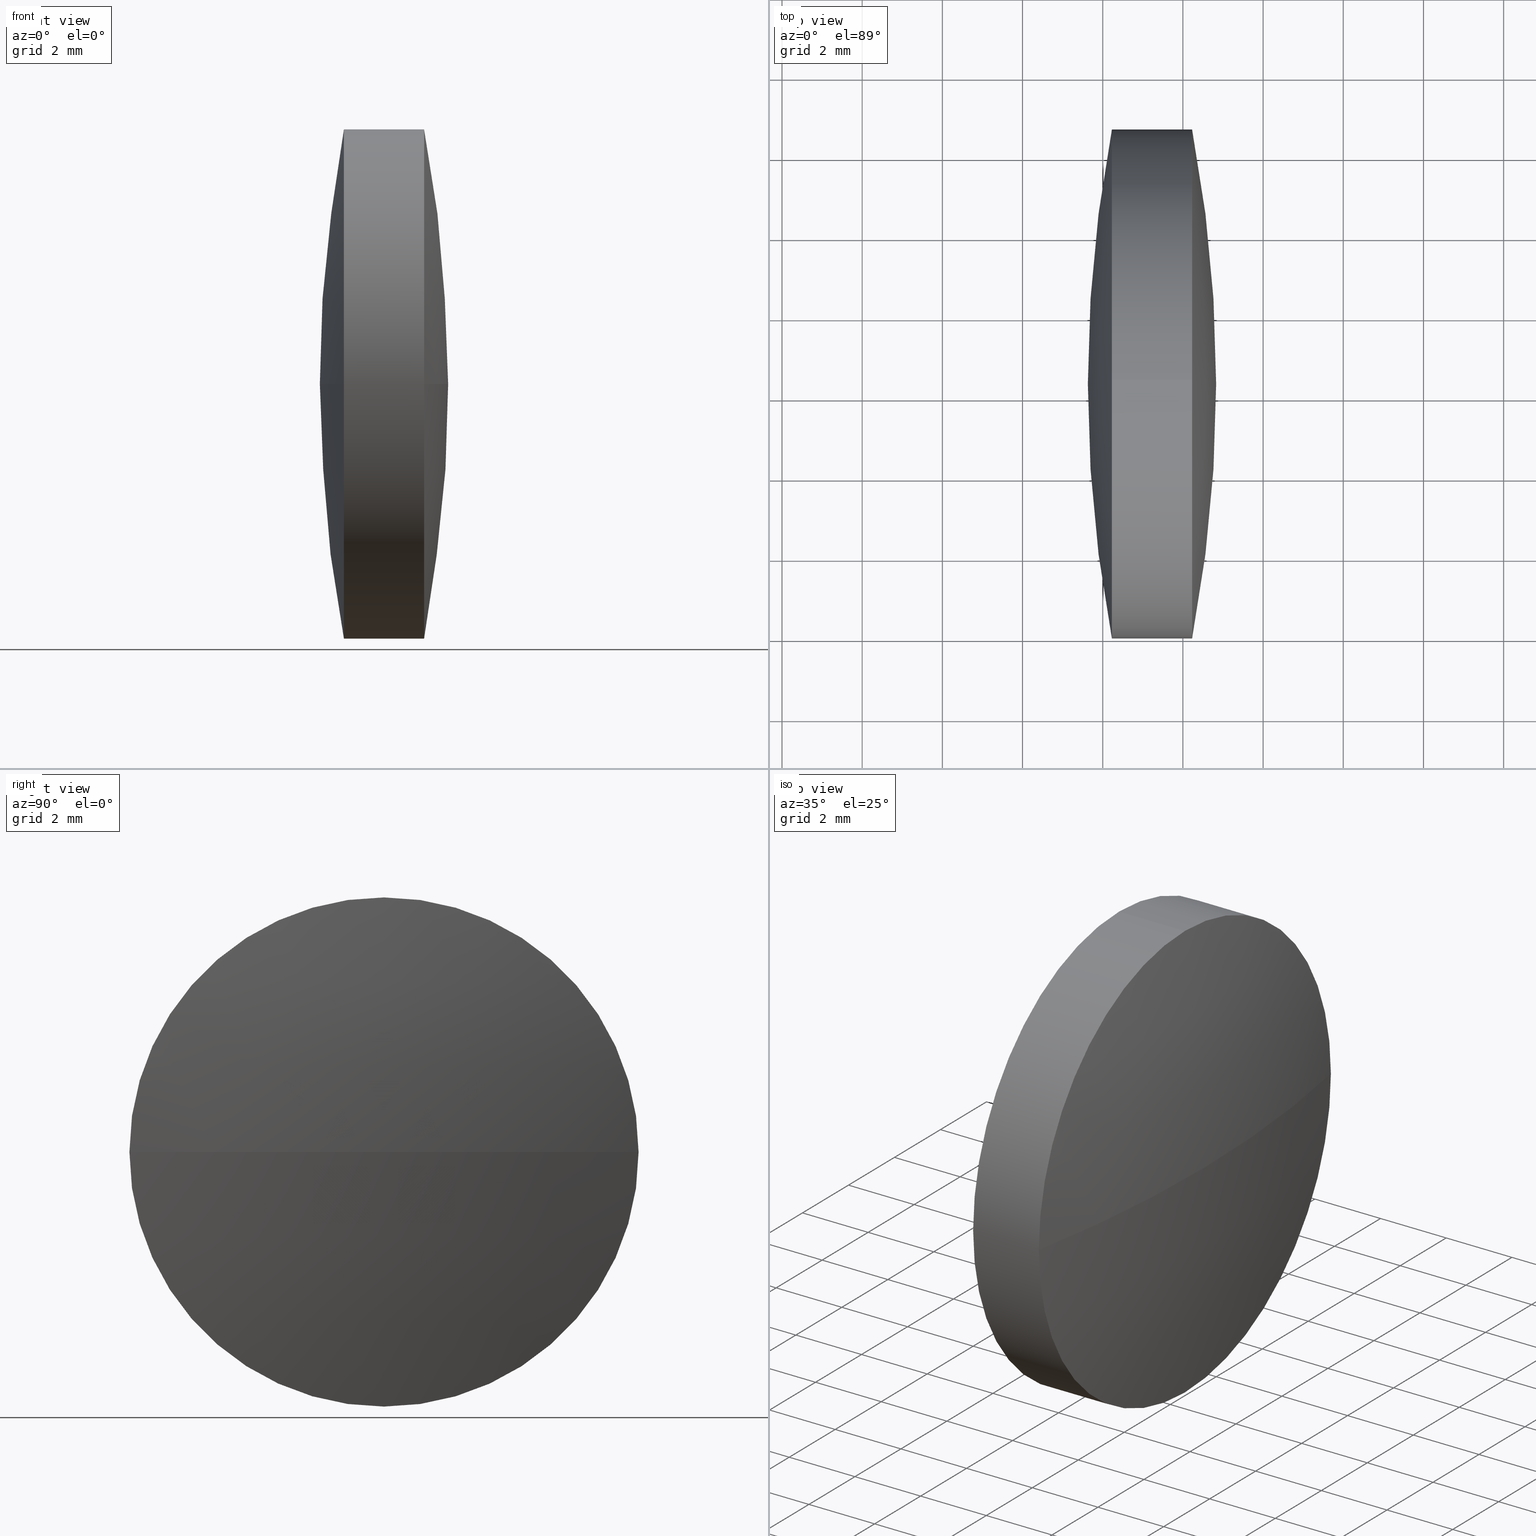
[diagram: canonical four-view strip — front | top / right | iso, engineering-drawing reading convention]
A machine part, canonical four-view strip (front | top / right | iso — engineering-drawing reading convention). The complete STEP part file that produces these views, byte-faithful:
ISO-10303-21;
HEADER;
FILE_DESCRIPTION (( 'STEP AP203' ),
    '1' );
FILE_NAME ('110138.STEP',
    '2019-07-08T08:51:16',
    ( '' ),
    ( '' ),
    'SwSTEP 2.0',
    'SolidWorks 2016',
    '' );
FILE_SCHEMA (( 'CONFIG_CONTROL_DESIGN' ));
ENDSEC;

DATA;
#1 = AXIS2_PLACEMENT_3D ( 'NONE', #329, #265, #82 ) ;
#2 = DIRECTION ( 'NONE',  ( -1.000000000000000000, -0.0000000000000000000, -0.0000000000000000000 ) ) ;
#3 = CARTESIAN_POINT ( 'NONE',  ( 75.53408436791684700, 24.30805651159236500, 0.0000000000000000000 ) ) ;
#4 = CARTESIAN_POINT ( 'NONE',  ( 42.22906260161698100, 24.30805651159239000, -6.349999999999997900 ) ) ;
#5 = EDGE_CURVE ( 'NONE', #108, #230, #272, .T. ) ;
#6 = LOCAL_TIME ( 16, 51, 16.00000000000000000, #186 ) ;
#7 = DIRECTION ( 'NONE',  ( -1.000000000000000000, -0.0000000000000000000, -0.0000000000000000000 ) ) ;
#8 = CARTESIAN_POINT ( 'NONE',  ( 42.22906260161698100, 24.30805651159239000, 6.349999999999997900 ) ) ;
#9 = ORIENTED_EDGE ( 'NONE', *, *, #289, .F. ) ;
#10 = FACE_OUTER_BOUND ( 'NONE', #42, .T. ) ;
#11 = DIRECTION ( 'NONE',  ( -1.000000000000000000, -0.0000000000000000000, -0.0000000000000000000 ) ) ;
#12 = PERSON_AND_ORGANIZATION ( #333, #29 ) ;
#13 = CALENDAR_DATE ( 2019, 8, 7 ) ;
#14 = PERSON_AND_ORGANIZATION_ROLE ( 'creator' ) ;
#15 = EDGE_CURVE ( 'NONE', #182, #170, #63, .T. ) ;
#16 = PERSON_AND_ORGANIZATION_ROLE ( 'design_supplier' ) ;
#17 = CIRCLE ( 'NONE', #52, 33.90496976629939500 ) ;
#18 = APPROVAL_DATE_TIME ( #87, #332 ) ;
#19 = CC_DESIGN_PERSON_AND_ORGANIZATION_ASSIGNMENT ( #235, #122, ( #67 ) ) ;
#20 = ORIENTED_EDGE ( 'NONE', *, *, #343, .T. ) ;
#21 = CC_DESIGN_PERSON_AND_ORGANIZATION_ASSIGNMENT ( #23, #14, ( #95 ) ) ;
#22 = CIRCLE ( 'NONE', #119, 6.349999999999997900 ) ;
#23 = PERSON_AND_ORGANIZATION ( #333, #29 ) ;
#24 = ORIENTED_EDGE ( 'NONE', *, *, #311, .T. ) ;
#25 = CIRCLE ( 'NONE', #260, 6.349999999999997900 ) ;
#26 = DATE_AND_TIME ( #154, #315 ) ;
#27 = VERTEX_POINT ( 'NONE', #113 ) ;
#28 = DIRECTION ( 'NONE',  ( 0.0000000000000000000, 1.000000000000000000, 1.224646799147353000E-016 ) ) ;
#29 = ORGANIZATION ( 'δָ��', 'δָ��', '' ) ;
#30 = ORIENTED_EDGE ( 'NONE', *, *, #289, .T. ) ;
#31 = EDGE_CURVE ( 'NONE', #219, #241, #183, .T. ) ;
#32 = DIRECTION ( 'NONE',  ( 1.000000000000000000, 0.0000000000000000000, 0.0000000000000000000 ) ) ;
#33 = LOCAL_TIME ( 16, 51, 16.00000000000000000, #165 ) ;
#34 = CARTESIAN_POINT ( 'NONE',  ( 75.53408436791684700, 24.30805651159236500, 0.0000000000000000000 ) ) ;
#35 = COORDINATED_UNIVERSAL_TIME_OFFSET ( 8, 0, .AHEAD. ) ;
#36 = CARTESIAN_POINT ( 'NONE',  ( 42.22906260161698100, 24.30805651159239000, 0.0000000000000000000 ) ) ;
#37 = DIRECTION ( 'NONE',  ( 1.000000000000000000, 0.0000000000000000000, 0.0000000000000000000 ) ) ;
#38 = APPLICATION_CONTEXT ( 'configuration controlled 3d designs of mechanical parts and assemblies' ) ;
#39 = APPROVAL_PERSON_ORGANIZATION ( #12, #44, #313 ) ;
#40 = APPROVAL_STATUS ( 'not_yet_approved' ) ;
#41 = AXIS2_PLACEMENT_3D ( 'NONE', #240, #268, #190 ) ;
#42 = EDGE_LOOP ( 'NONE', ( #162, #20, #129, #184 ) ) ;
#43 = PERSON_AND_ORGANIZATION_ROLE ( 'creator' ) ;
#44 = APPROVAL ( #284, 'δָ��' ) ;
#45 = APPLICATION_PROTOCOL_DEFINITION ( 'international standard', 'config_control_design', 1994, #124 ) ;
#46 = CC_DESIGN_APPROVAL ( #150, ( #95 ) ) ;
#47 = ORIENTED_EDGE ( 'NONE', *, *, #5, .F. ) ;
#48 = SPHERICAL_SURFACE ( 'NONE', #337, 33.90496976629986400 ) ;
#49 = DATE_AND_TIME ( #344, #131 ) ;
#50 = ORIENTED_EDGE ( 'NONE', *, *, #64, .T. ) ;
#51 = PRODUCT_DEFINITION_SHAPE ( 'NONE', 'NONE',  #172 ) ;
#52 = AXIS2_PLACEMENT_3D ( 'NONE', #136, #86, #62 ) ;
#53 = ORIENTED_EDGE ( 'NONE', *, *, #181, .F. ) ;
#54 = FACE_OUTER_BOUND ( 'NONE', #309, .T. ) ;
#55 = DATE_AND_TIME ( #128, #263 ) ;
#56 = CC_DESIGN_DATE_AND_TIME_ASSIGNMENT ( #26, #254, ( #172 ) ) ;
#57 = ORIENTED_EDGE ( 'NONE', *, *, #31, .T. ) ;
#58 = DIRECTION ( 'NONE',  ( -1.000000000000000000, -0.0000000000000000000, -0.0000000000000000000 ) ) ;
#59 = CALENDAR_DATE ( 2019, 8, 7 ) ;
#60 = CC_DESIGN_APPROVAL ( #326, ( #209 ) ) ;
#61 = ADVANCED_FACE ( 'NONE', ( #232 ), #105, .T. ) ;
#62 = DIRECTION ( 'NONE',  ( 0.0000000000000000000, -1.000000000000000000, -1.224646799147353000E-016 ) ) ;
#63 = CIRCLE ( 'NONE', #102, 33.90496976629986400 ) ;
#64 = EDGE_CURVE ( 'NONE', #188, #170, #320, .T. ) ;
#65 = DIRECTION ( 'NONE',  ( -1.000000000000000000, 0.0000000000000000000, 0.0000000000000000000 ) ) ;
#66 = DATE_AND_TIME ( #185, #6 ) ;
#67 = PRODUCT ( '110138', '110138', '', ( #297 ) ) ;
#68 = CARTESIAN_POINT ( 'NONE',  ( 44.22913117304555200, 30.65805651159239200, 7.776507174585659600E-016 ) ) ;
#69 = DIRECTION ( 'NONE',  ( 0.0000000000000000000, 0.0000000000000000000, 1.000000000000000000 ) ) ;
#70 = ADVANCED_FACE ( 'NONE', ( #54 ), #261, .T. ) ;
#71 = LOCAL_TIME ( 16, 51, 16.00000000000000000, #132 ) ;
#72 = CARTESIAN_POINT ( 'NONE',  ( 0.0000000000000000000, 0.0000000000000000000, 0.0000000000000000000 ) ) ;
#73 = DESIGN_CONTEXT ( 'detailed design', #306, 'design' ) ;
#74 = PERSON_AND_ORGANIZATION_ROLE ( 'creator' ) ;
#75 = MANIFOLD_SOLID_BREP ( '��ת1', #236 ) ;
#76 = PERSON_AND_ORGANIZATION ( #333, #29 ) ;
#77 = APPROVAL_STATUS ( 'not_yet_approved' ) ;
#78 = DATE_AND_TIME ( #59, #317 ) ;
#79 = ORIENTED_EDGE ( 'NONE', *, *, #187, .T. ) ;
#80 = CIRCLE ( 'NONE', #192, 6.349999999999997900 ) ;
#81 = CARTESIAN_POINT ( 'NONE',  ( 39.65270067541857900, 24.30805651159239000, -6.349999999999997900 ) ) ;
#82 = DIRECTION ( 'NONE',  ( 0.0000000000000000000, 1.000000000000000000, 0.0000000000000000000 ) ) ;
#83 = AXIS2_PLACEMENT_3D ( 'NONE', #167, #111, #273 ) ;
#84 = DIRECTION ( 'NONE',  ( 0.0000000000000000000, 1.224646799147353200E-016, -1.000000000000000000 ) ) ;
#85 = CIRCLE ( 'NONE', #231, 6.349999999999997900 ) ;
#86 = DIRECTION ( 'NONE',  ( 0.0000000000000000000, -1.224646799147353200E-016, 1.000000000000000000 ) ) ;
#87 = DATE_AND_TIME ( #114, #221 ) ;
#88 = CARTESIAN_POINT ( 'NONE',  ( 44.22913117304555200, 24.30805651159239000, 0.0000000000000000000 ) ) ;
#89 = CARTESIAN_POINT ( 'NONE',  ( 44.22913117304555200, 24.30805651159239000, 6.349999999999997900 ) ) ;
#90 = ORIENTED_EDGE ( 'NONE', *, *, #135, .T. ) ;
#91 = PRODUCT ( '110138', '110138', '', ( #180 ) ) ;
#92 = DIRECTION ( 'NONE',  ( 0.0000000000000000000, 0.0000000000000000000, 1.000000000000000000 ) ) ;
#93 = ADVANCED_FACE ( 'NONE', ( #163 ), #48, .T. ) ;
#94 = DIRECTION ( 'NONE',  ( 0.0000000000000000000, 0.0000000000000000000, 1.000000000000000000 ) ) ;
#95 = PRODUCT_DEFINITION_FORMATION_WITH_SPECIFIED_SOURCE ( '�κ�', '', #67, .NOT_KNOWN. ) ;
#96 = DIRECTION ( 'NONE',  ( 0.0000000000000000000, 0.0000000000000000000, 1.000000000000000000 ) ) ;
#97 = PERSON_AND_ORGANIZATION ( #333, #29 ) ;
#98 = APPROVAL_DATE_TIME ( #257, #335 ) ;
#99 = ORIENTED_EDGE ( 'NONE', *, *, #280, .T. ) ;
#100 = VECTOR ( 'NONE', #141, 1000.000000000000000 ) ;
#101 = PERSON_AND_ORGANIZATION_ROLE ( 'design_supplier' ) ;
#102 = AXIS2_PLACEMENT_3D ( 'NONE', #137, #84, #28 ) ;
#103 = PERSON_AND_ORGANIZATION ( #333, #29 ) ;
#104 = ORIENTED_EDGE ( 'NONE', *, *, #5, .T. ) ;
#105 = CYLINDRICAL_SURFACE ( 'NONE', #213, 6.349999999999997900 ) ;
#106 = COORDINATED_UNIVERSAL_TIME_OFFSET ( 8, 0, .AHEAD. ) ;
#107 = LOCAL_TIME ( 16, 51, 16.00000000000000000, #267 ) ;
#108 = VERTEX_POINT ( 'NONE', #269 ) ;
#109 = CC_DESIGN_PERSON_AND_ORGANIZATION_ASSIGNMENT ( #138, #308, ( #91 ) ) ;
#110 = PERSON_AND_ORGANIZATION ( #333, #29 ) ;
#111 = DIRECTION ( 'NONE',  ( -1.000000000000000000, -0.0000000000000000000, -0.0000000000000000000 ) ) ;
#112 = ORIENTED_EDGE ( 'NONE', *, *, #187, .F. ) ;
#113 = CARTESIAN_POINT ( 'NONE',  ( 44.82907917304555700, 24.30805651159241500, 0.0000000000000000000 ) ) ;
#114 = CALENDAR_DATE ( 2019, 8, 7 ) ;
#115 = CARTESIAN_POINT ( 'NONE',  ( 39.65270067541857900, 24.30805651159239000, 6.349999999999997900 ) ) ;
#116 = APPROVAL_STATUS ( 'not_yet_approved' ) ;
#117 = DIRECTION ( 'NONE',  ( 0.0000000000000000000, 0.0000000000000000000, 1.000000000000000000 ) ) ;
#118 = CC_DESIGN_PERSON_AND_ORGANIZATION_ASSIGNMENT ( #110, #101, ( #95 ) ) ;
#119 = AXIS2_PLACEMENT_3D ( 'NONE', #249, #195, #92 ) ;
#120 = AXIS2_PLACEMENT_3D ( 'NONE', #140, #168, #245 ) ;
#121 = CARTESIAN_POINT ( 'NONE',  ( 41.62911460161699000, 24.30805651159236900, 0.0000000000000000000 ) ) ;
#122 = PERSON_AND_ORGANIZATION_ROLE ( 'design_owner' ) ;
#123 = CC_DESIGN_SECURITY_CLASSIFICATION ( #234, ( #340 ) ) ;
#124 = APPLICATION_CONTEXT ( 'configuration controlled 3d designs of mechanical parts and assemblies' ) ;
#125 = AXIS2_PLACEMENT_3D ( 'NONE', #277, #117, #271 ) ;
#126 = DATE_TIME_ROLE ( 'creation_date' ) ;
#127 = EDGE_LOOP ( 'NONE', ( #205, #90, #9, #246 ) ) ;
#128 = CALENDAR_DATE ( 2019, 8, 7 ) ;
#129 = ORIENTED_EDGE ( 'NONE', *, *, #311, .F. ) ;
#130 = CALENDAR_DATE ( 2019, 8, 7 ) ;
#131 = LOCAL_TIME ( 16, 51, 16.00000000000000000, #250 ) ;
#132 = COORDINATED_UNIVERSAL_TIME_OFFSET ( 8, 0, .AHEAD. ) ;
#133 = CARTESIAN_POINT ( 'NONE',  ( 39.65270067541857900, 24.30805651159239000, 0.0000000000000000000 ) ) ;
#134 = PERSON_AND_ORGANIZATION ( #333, #29 ) ;
#135 = EDGE_CURVE ( 'NONE', #27, #201, #17, .T. ) ;
#136 = CARTESIAN_POINT ( 'NONE',  ( 10.92410940674616300, 24.30805651159241900, 0.0000000000000000000 ) ) ;
#137 = CARTESIAN_POINT ( 'NONE',  ( 75.53408436791684700, 24.30805651159236500, 0.0000000000000000000 ) ) ;
#138 = PERSON_AND_ORGANIZATION ( #333, #29 ) ;
#139 = CARTESIAN_POINT ( 'NONE',  ( 42.22906260161698100, 17.95805651159238200, -7.776507174585672400E-016 ) ) ;
#140 = CARTESIAN_POINT ( 'NONE',  ( 44.22913117304555200, 24.30805651159239000, 0.0000000000000000000 ) ) ;
#141 = DIRECTION ( 'NONE',  ( -1.000000000000000000, -0.0000000000000000000, -0.0000000000000000000 ) ) ;
#142 = ORIENTED_EDGE ( 'NONE', *, *, #161, .F. ) ;
#143 = DIRECTION ( 'NONE',  ( 1.000000000000000000, 0.0000000000000000000, 0.0000000000000000000 ) ) ;
#144 = CIRCLE ( 'NONE', #203, 6.349999999999997900 ) ;
#145 = APPLICATION_PROTOCOL_DEFINITION ( 'international standard', 'config_control_design', 1994, #306 ) ;
#146 = APPLICATION_PROTOCOL_DEFINITION ( 'international standard', 'config_control_design', 1994, #38 ) ;
#147 = EDGE_CURVE ( 'NONE', #188, #230, #159, .T. ) ;
#148 = PERSON_AND_ORGANIZATION ( #333, #29 ) ;
#149 = DATE_TIME_ROLE ( 'classification_date' ) ;
#150 = APPROVAL ( #116, 'δָ��' ) ;
#151 = APPROVAL_ROLE ( '' ) ;
#152 = PRODUCT_DEFINITION_SHAPE ( 'NONE', 'NONE',  #209 ) ;
#153 = APPROVAL_DATE_TIME ( #228, #44 ) ;
#154 = CALENDAR_DATE ( 2019, 8, 7 ) ;
#155 = CIRCLE ( 'NONE', #299, 33.90496976629939500 ) ;
#156 = AXIS2_PLACEMENT_3D ( 'NONE', #217, #173, #330 ) ;
#157 = DATE_AND_TIME ( #298, #33 ) ;
#158 = AXIS2_PLACEMENT_3D ( 'NONE', #216, #196, #37 ) ;
#159 = CIRCLE ( 'NONE', #83, 6.349999999999997900 ) ;
#160 = PERSON_AND_ORGANIZATION ( #333, #29 ) ;
#161 = EDGE_CURVE ( 'NONE', #182, #210, #85, .T. ) ;
#162 = ORIENTED_EDGE ( 'NONE', *, *, #135, .F. ) ;
#163 = FACE_OUTER_BOUND ( 'NONE', #264, .T. ) ;
#164 = CC_DESIGN_PERSON_AND_ORGANIZATION_ASSIGNMENT ( #293, #224, ( #169 ) ) ;
#165 = COORDINATED_UNIVERSAL_TIME_OFFSET ( 8, 0, .AHEAD. ) ;
#166 = ADVANCED_FACE ( 'NONE', ( #290 ), #323, .T. ) ;
#167 = CARTESIAN_POINT ( 'NONE',  ( 42.22906260161698100, 24.30805651159239000, 0.0000000000000000000 ) ) ;
#168 = DIRECTION ( 'NONE',  ( -1.000000000000000000, -0.0000000000000000000, -0.0000000000000000000 ) ) ;
#169 = SECURITY_CLASSIFICATION ( '', '', #256 ) ;
#170 = VERTEX_POINT ( 'NONE', #121 ) ;
#171 = CARTESIAN_POINT ( 'NONE',  ( 42.22906260161698100, 24.30805651159239000, 0.0000000000000000000 ) ) ;
#172 = PRODUCT_DEFINITION ( 'δ֪', '', #95, #73 ) ;
#173 = DIRECTION ( 'NONE',  ( -1.000000000000000000, -0.0000000000000000000, -0.0000000000000000000 ) ) ;
#174 = COORDINATED_UNIVERSAL_TIME_OFFSET ( 8, 0, .AHEAD. ) ;
#175 = CARTESIAN_POINT ( 'NONE',  ( 44.22913117304555200, 24.30805651159239000, 0.0000000000000000000 ) ) ;
#176 = EDGE_LOOP ( 'NONE', ( #47, #24, #57, #342, #142, #278 ) ) ;
#177 = CC_DESIGN_APPROVAL ( #44, ( #340 ) ) ;
#178 = DATE_TIME_ROLE ( 'classification_date' ) ;
#179 = LINE ( 'NONE', #115, #100 ) ;
#180 = MECHANICAL_CONTEXT ( 'NONE', #38, 'mechanical' ) ;
#181 = EDGE_CURVE ( 'NONE', #241, #210, #179, .T. ) ;
#182 = VERTEX_POINT ( 'NONE', #139 ) ;
#183 = CIRCLE ( 'NONE', #41, 6.349999999999997900 ) ;
#184 = ORIENTED_EDGE ( 'NONE', *, *, #280, .F. ) ;
#185 = CALENDAR_DATE ( 2019, 8, 7 ) ;
#186 = COORDINATED_UNIVERSAL_TIME_OFFSET ( 8, 0, .AHEAD. ) ;
#187 = EDGE_CURVE ( 'NONE', #210, #188, #22, .T. ) ;
#188 = VERTEX_POINT ( 'NONE', #218 ) ;
#189 = UNCERTAINTY_MEASURE_WITH_UNIT (LENGTH_MEASURE( 1.000000000000000100E-005 ), #193, 'distance_accuracy_value', 'NONE');
#190 = DIRECTION ( 'NONE',  ( 0.0000000000000000000, 0.0000000000000000000, 1.000000000000000000 ) ) ;
#191 = DIRECTION ( 'NONE',  ( -0.0000000000000000000, 0.0000000000000000000, 1.000000000000000000 ) ) ;
#192 = AXIS2_PLACEMENT_3D ( 'NONE', #175, #7, #96 ) ;
#193 =( LENGTH_UNIT ( ) NAMED_UNIT ( * ) SI_UNIT ( .MILLI., .METRE. ) );
#194 = SHAPE_DEFINITION_REPRESENTATION ( #152, #319 ) ;
#195 = DIRECTION ( 'NONE',  ( -1.000000000000000000, -0.0000000000000000000, -0.0000000000000000000 ) ) ;
#196 = DIRECTION ( 'NONE',  ( 0.0000000000000000000, 0.0000000000000000000, 1.000000000000000000 ) ) ;
#197 = CC_DESIGN_SECURITY_CLASSIFICATION ( #169, ( #95 ) ) ;
#198 =( NAMED_UNIT ( * ) SI_UNIT ( $, .STERADIAN. ) SOLID_ANGLE_UNIT ( ) );
#199 = AXIS2_PLACEMENT_3D ( 'NONE', #34, #191, #32 ) ;
#200 = PERSON_AND_ORGANIZATION_ROLE ( 'creator' ) ;
#201 = VERTEX_POINT ( 'NONE', #68 ) ;
#202 = SECURITY_CLASSIFICATION_LEVEL ( 'unclassified' ) ;
#203 = AXIS2_PLACEMENT_3D ( 'NONE', #88, #248, #301 ) ;
#204 = APPROVAL_PERSON_ORGANIZATION ( #103, #335, #222 ) ;
#205 = ORIENTED_EDGE ( 'NONE', *, *, #343, .F. ) ;
#206 = APPROVAL_DATE_TIME ( #55, #326 ) ;
#207 = PERSON_AND_ORGANIZATION ( #333, #29 ) ;
#208 = COORDINATED_UNIVERSAL_TIME_OFFSET ( 8, 0, .AHEAD. ) ;
#209 = PRODUCT_DEFINITION ( 'δ֪', '', #340, #242 ) ;
#210 = VERTEX_POINT ( 'NONE', #8 ) ;
#211 = CIRCLE ( 'NONE', #120, 6.349999999999997900 ) ;
#212 = LOCAL_TIME ( 16, 51, 16.00000000000000000, #174 ) ;
#213 = AXIS2_PLACEMENT_3D ( 'NONE', #133, #58, #327 ) ;
#214 = DIRECTION ( 'NONE',  ( 0.0000000000000000000, 1.000000000000000000, 0.0000000000000000000 ) ) ;
#215 = CARTESIAN_POINT ( 'NONE',  ( 10.92410940674616300, 24.30805651159241900, 0.0000000000000000000 ) ) ;
#216 = CARTESIAN_POINT ( 'NONE',  ( 0.0000000000000000000, 0.0000000000000000000, 0.0000000000000000000 ) ) ;
#217 = CARTESIAN_POINT ( 'NONE',  ( 39.65270067541857900, 24.30805651159239000, 0.0000000000000000000 ) ) ;
#218 = CARTESIAN_POINT ( 'NONE',  ( 42.22906260161698100, 30.65805651159237400, 0.0000000000000000000 ) ) ;
#219 = VERTEX_POINT ( 'NONE', #303 ) ;
#220 = APPLICATION_PROTOCOL_DEFINITION ( 'international standard', 'config_control_design', 1994, #302 ) ;
#221 = LOCAL_TIME ( 16, 51, 16.00000000000000000, #106 ) ;
#222 = APPROVAL_ROLE ( '' ) ;
#223 = CC_DESIGN_APPROVAL ( #332, ( #169 ) ) ;
#224 = PERSON_AND_ORGANIZATION_ROLE ( 'classification_officer' ) ;
#225 = APPROVAL_ROLE ( '' ) ;
#226 = PERSON_AND_ORGANIZATION_ROLE ( 'classification_officer' ) ;
#227 = CC_DESIGN_DATE_AND_TIME_ASSIGNMENT ( #78, #126, ( #209 ) ) ;
#228 = DATE_AND_TIME ( #288, #107 ) ;
#229 = CC_DESIGN_PERSON_AND_ORGANIZATION_ASSIGNMENT ( #134, #226, ( #234 ) ) ;
#230 = VERTEX_POINT ( 'NONE', #4 ) ;
#231 = AXIS2_PLACEMENT_3D ( 'NONE', #171, #247, #275 ) ;
#232 = FACE_OUTER_BOUND ( 'NONE', #258, .T. ) ;
#233 = APPROVAL_PERSON_ORGANIZATION ( #238, #332, #151 ) ;
#234 = SECURITY_CLASSIFICATION ( '', '', #202 ) ;
#235 = PERSON_AND_ORGANIZATION ( #333, #29 ) ;
#236 = CLOSED_SHELL ( 'NONE', ( #61, #166, #93, #70, #244, #279 ) ) ;
#237 = CC_DESIGN_APPROVAL ( #335, ( #172 ) ) ;
#238 = PERSON_AND_ORGANIZATION ( #333, #29 ) ;
#239 = COORDINATED_UNIVERSAL_TIME_OFFSET ( 8, 0, .AHEAD. ) ;
#240 = CARTESIAN_POINT ( 'NONE',  ( 44.22913117304555200, 24.30805651159239000, 0.0000000000000000000 ) ) ;
#241 = VERTEX_POINT ( 'NONE', #89 ) ;
#242 = DESIGN_CONTEXT ( 'detailed design', #124, 'design' ) ;
#243 = CC_DESIGN_PERSON_AND_ORGANIZATION_ASSIGNMENT ( #339, #43, ( #209 ) ) ;
#244 = ADVANCED_FACE ( 'NONE', ( #10 ), #292, .T. ) ;
#245 = DIRECTION ( 'NONE',  ( 0.0000000000000000000, 0.0000000000000000000, 1.000000000000000000 ) ) ;
#246 = ORIENTED_EDGE ( 'NONE', *, *, #31, .F. ) ;
#247 = DIRECTION ( 'NONE',  ( -1.000000000000000000, -0.0000000000000000000, -0.0000000000000000000 ) ) ;
#248 = DIRECTION ( 'NONE',  ( -1.000000000000000000, -0.0000000000000000000, -0.0000000000000000000 ) ) ;
#249 = CARTESIAN_POINT ( 'NONE',  ( 42.22906260161698100, 24.30805651159239000, 0.0000000000000000000 ) ) ;
#250 = COORDINATED_UNIVERSAL_TIME_OFFSET ( 8, 0, .AHEAD. ) ;
#251 = CC_DESIGN_PERSON_AND_ORGANIZATION_ASSIGNMENT ( #207, #200, ( #340 ) ) ;
#252 = CARTESIAN_POINT ( 'NONE',  ( 10.92410940674616300, 24.30805651159241900, 0.0000000000000000000 ) ) ;
#253 = ORIENTED_EDGE ( 'NONE', *, *, #15, .F. ) ;
#254 = DATE_TIME_ROLE ( 'creation_date' ) ;
#255 = CC_DESIGN_APPROVAL ( #296, ( #234 ) ) ;
#256 = SECURITY_CLASSIFICATION_LEVEL ( 'unclassified' ) ;
#257 = DATE_AND_TIME ( #13, #71 ) ;
#258 = EDGE_LOOP ( 'NONE', ( #99, #104, #325, #112, #53, #30 ) ) ;
#259 = CC_DESIGN_DATE_AND_TIME_ASSIGNMENT ( #307, #178, ( #234 ) ) ;
#260 = AXIS2_PLACEMENT_3D ( 'NONE', #36, #11, #94 ) ;
#261 = SPHERICAL_SURFACE ( 'NONE', #1, 33.90496976629986400 ) ;
#262 = APPROVAL_DATE_TIME ( #49, #296 ) ;
#263 = LOCAL_TIME ( 16, 51, 16.00000000000000000, #208 ) ;
#264 = EDGE_LOOP ( 'NONE', ( #316, #345, #291, #270 ) ) ;
#265 = DIRECTION ( 'NONE',  ( -0.0000000000000000000, 0.0000000000000000000, -1.000000000000000000 ) ) ;
#266 = PRODUCT_RELATED_PRODUCT_CATEGORY ( 'detail', '', ( #91 ) ) ;
#267 = COORDINATED_UNIVERSAL_TIME_OFFSET ( 8, 0, .AHEAD. ) ;
#268 = DIRECTION ( 'NONE',  ( -1.000000000000000000, -0.0000000000000000000, -0.0000000000000000000 ) ) ;
#269 = CARTESIAN_POINT ( 'NONE',  ( 44.22913117304555200, 24.30805651159239000, -6.349999999999997900 ) ) ;
#270 = ORIENTED_EDGE ( 'NONE', *, *, #64, .F. ) ;
#271 = DIRECTION ( 'NONE',  ( 0.0000000000000000000, -1.000000000000000000, 0.0000000000000000000 ) ) ;
#272 = LINE ( 'NONE', #81, #312 ) ;
#273 = DIRECTION ( 'NONE',  ( 0.0000000000000000000, 0.0000000000000000000, 1.000000000000000000 ) ) ;
#274 =( NAMED_UNIT ( * ) PLANE_ANGLE_UNIT ( ) SI_UNIT ( $, .RADIAN. ) );
#275 = DIRECTION ( 'NONE',  ( 0.0000000000000000000, 0.0000000000000000000, 1.000000000000000000 ) ) ;
#276 = CC_DESIGN_PERSON_AND_ORGANIZATION_ASSIGNMENT ( #295, #74, ( #172 ) ) ;
#277 = CARTESIAN_POINT ( 'NONE',  ( 10.92410940674616300, 24.30805651159241900, 0.0000000000000000000 ) ) ;
#278 = ORIENTED_EDGE ( 'NONE', *, *, #318, .F. ) ;
#279 = ADVANCED_FACE ( 'NONE', ( #281 ), #287, .T. ) ;
#280 = EDGE_CURVE ( 'NONE', #201, #108, #211, .T. ) ;
#281 = FACE_OUTER_BOUND ( 'NONE', #176, .T. ) ;
#282 = APPROVAL_PERSON_ORGANIZATION ( #148, #150, #310 ) ;
#283 = APPROVAL_STATUS ( 'not_yet_approved' ) ;
#284 = APPROVAL_STATUS ( 'not_yet_approved' ) ;
#285 = APPROVAL_PERSON_ORGANIZATION ( #76, #326, #338 ) ;
#286 = AXIS2_PLACEMENT_3D ( 'NONE', #72, #69, #143 ) ;
#287 = CYLINDRICAL_SURFACE ( 'NONE', #156, 6.349999999999997900 ) ;
#288 = CALENDAR_DATE ( 2019, 8, 7 ) ;
#289 = EDGE_CURVE ( 'NONE', #241, #201, #144, .T. ) ;
#290 = FACE_OUTER_BOUND ( 'NONE', #127, .T. ) ;
#291 = ORIENTED_EDGE ( 'NONE', *, *, #15, .T. ) ;
#292 = SPHERICAL_SURFACE ( 'NONE', #125, 33.90496976629939500 ) ;
#293 = PERSON_AND_ORGANIZATION ( #333, #29 ) ;
#294 = APPROVAL_PERSON_ORGANIZATION ( #97, #296, #225 ) ;
#295 = PERSON_AND_ORGANIZATION ( #333, #29 ) ;
#296 = APPROVAL ( #77, 'δָ��' ) ;
#297 = MECHANICAL_CONTEXT ( 'NONE', #302, 'mechanical' ) ;
#298 = CALENDAR_DATE ( 2019, 8, 7 ) ;
#299 = AXIS2_PLACEMENT_3D ( 'NONE', #252, #304, #65 ) ;
#300 = DIRECTION ( 'NONE',  ( 0.0000000000000000000, 0.0000000000000000000, 1.000000000000000000 ) ) ;
#301 = DIRECTION ( 'NONE',  ( 0.0000000000000000000, 0.0000000000000000000, 1.000000000000000000 ) ) ;
#302 = APPLICATION_CONTEXT ( 'configuration controlled 3d designs of mechanical parts and assemblies' ) ;
#303 = CARTESIAN_POINT ( 'NONE',  ( 44.22913117304555200, 17.95805651159241700, 0.0000000000000000000 ) ) ;
#304 = DIRECTION ( 'NONE',  ( 0.0000000000000000000, 0.0000000000000000000, -1.000000000000000000 ) ) ;
#305 = PRODUCT_RELATED_PRODUCT_CATEGORY ( 'detail', '', ( #67 ) ) ;
#306 = APPLICATION_CONTEXT ( 'configuration controlled 3d designs of mechanical parts and assemblies' ) ;
#307 = DATE_AND_TIME ( #130, #212 ) ;
#308 = PERSON_AND_ORGANIZATION_ROLE ( 'design_owner' ) ;
#309 = EDGE_LOOP ( 'NONE', ( #253, #336, #79, #50 ) ) ;
#310 = APPROVAL_ROLE ( '' ) ;
#311 = EDGE_CURVE ( 'NONE', #108, #219, #80, .T. ) ;
#312 = VECTOR ( 'NONE', #2, 1000.000000000000000 ) ;
#313 = APPROVAL_ROLE ( '' ) ;
#314 = CC_DESIGN_DATE_AND_TIME_ASSIGNMENT ( #157, #149, ( #169 ) ) ;
#315 = LOCAL_TIME ( 16, 51, 16.00000000000000000, #35 ) ;
#316 = ORIENTED_EDGE ( 'NONE', *, *, #147, .T. ) ;
#317 = LOCAL_TIME ( 16, 51, 16.00000000000000000, #239 ) ;
#318 = EDGE_CURVE ( 'NONE', #230, #182, #25, .T. ) ;
#319 = ADVANCED_BREP_SHAPE_REPRESENTATION ( '110138', ( #75, #158 ), #322 ) ;
#320 = CIRCLE ( 'NONE', #199, 33.90496976629986400 ) ;
#321 = CC_DESIGN_PERSON_AND_ORGANIZATION_ASSIGNMENT ( #160, #16, ( #340 ) ) ;
#322 =( GEOMETRIC_REPRESENTATION_CONTEXT ( 3 ) GLOBAL_UNCERTAINTY_ASSIGNED_CONTEXT ( ( #189 ) ) GLOBAL_UNIT_ASSIGNED_CONTEXT ( ( #193, #274, #198 ) ) REPRESENTATION_CONTEXT ( 'NONE', 'WORKASPACE' ) );
#323 = SPHERICAL_SURFACE ( 'NONE', #328, 33.90496976629939500 ) ;
#324 = APPROVAL_DATE_TIME ( #66, #150 ) ;
#325 = ORIENTED_EDGE ( 'NONE', *, *, #147, .F. ) ;
#326 = APPROVAL ( #283, 'δָ��' ) ;
#327 = DIRECTION ( 'NONE',  ( 0.0000000000000000000, 0.0000000000000000000, 1.000000000000000000 ) ) ;
#328 = AXIS2_PLACEMENT_3D ( 'NONE', #215, #300, #334 ) ;
#329 = CARTESIAN_POINT ( 'NONE',  ( 75.53408436791684700, 24.30805651159236500, 0.0000000000000000000 ) ) ;
#330 = DIRECTION ( 'NONE',  ( 0.0000000000000000000, 0.0000000000000000000, 1.000000000000000000 ) ) ;
#331 = DIRECTION ( 'NONE',  ( -0.0000000000000000000, 0.0000000000000000000, -1.000000000000000000 ) ) ;
#332 = APPROVAL ( #341, 'δָ��' ) ;
#333 = PERSON ( 'δָ��', 'δָ��', 'δָ��', ('δָ��'), ('δָ��'), ('δָ��') ) ;
#334 = DIRECTION ( 'NONE',  ( 0.0000000000000000000, -1.000000000000000000, 0.0000000000000000000 ) ) ;
#335 = APPROVAL ( #40, 'δָ��' ) ;
#336 = ORIENTED_EDGE ( 'NONE', *, *, #161, .T. ) ;
#337 = AXIS2_PLACEMENT_3D ( 'NONE', #3, #331, #214 ) ;
#338 = APPROVAL_ROLE ( '' ) ;
#339 = PERSON_AND_ORGANIZATION ( #333, #29 ) ;
#340 = PRODUCT_DEFINITION_FORMATION_WITH_SPECIFIED_SOURCE ( '�κ�', '', #91, .NOT_KNOWN. ) ;
#341 = APPROVAL_STATUS ( 'not_yet_approved' ) ;
#342 = ORIENTED_EDGE ( 'NONE', *, *, #181, .T. ) ;
#343 = EDGE_CURVE ( 'NONE', #27, #219, #155, .T. ) ;
#344 = CALENDAR_DATE ( 2019, 8, 7 ) ;
#345 = ORIENTED_EDGE ( 'NONE', *, *, #318, .T. ) ;
ENDSEC;
END-ISO-10303-21;
